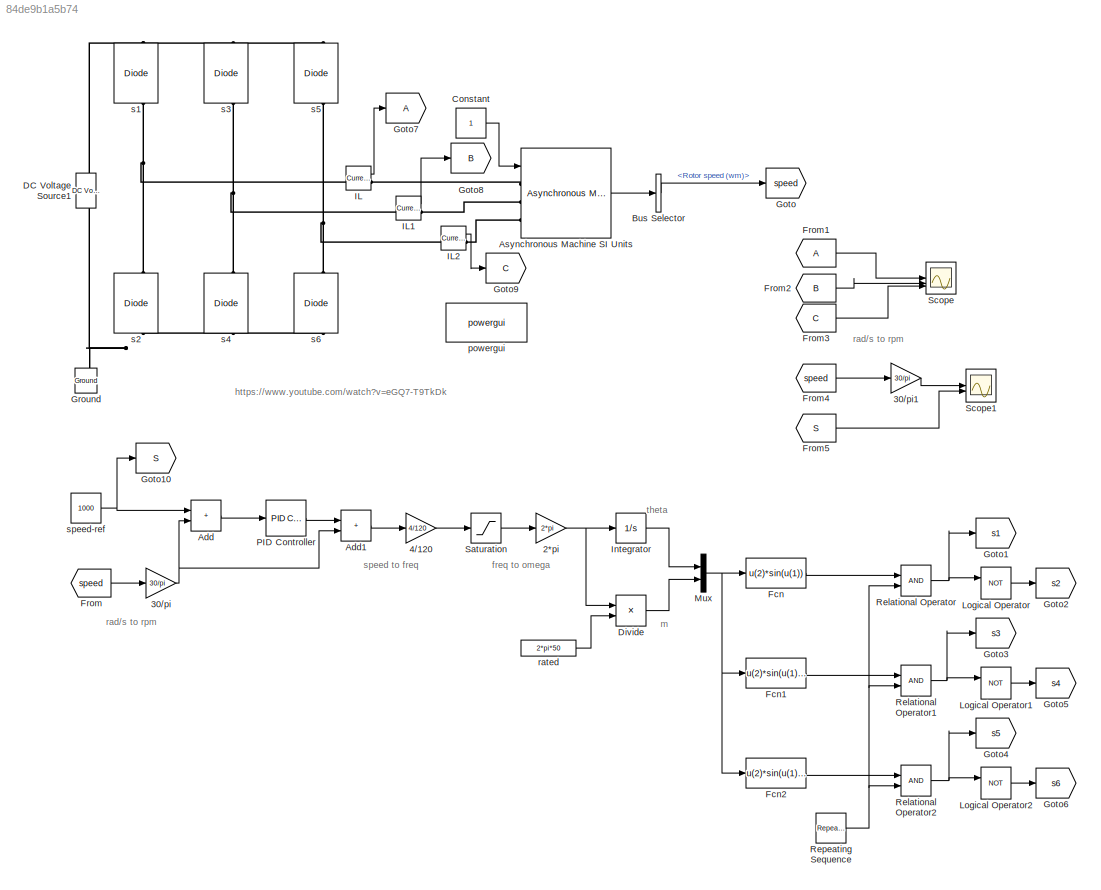
MODEL slx_84de9b1a5b74
KIND model
CONFIG AbsTol = auto
CONFIG EnableMultiTasking = off
CONFIG FixedStep = 1e-5
CONFIG MaxStep = auto
CONFIG MinStep = auto
CONFIG RelTol = 1e-3
CONFIG SampleTimeConstraint = Unconstrained
CONFIG SolverName = ode3
CONFIG StartTime = 0.0
CONFIG StopTime = 10.0
BLOCK [Gain] 2*pi
  Gain = 2*pi
BLOCK [Gain] 30//pi
  Gain = 30/pi
BLOCK [Gain] 30//pi1
  Gain = 30/pi
BLOCK [Gain] 4//120
  Gain = 4/120
BLOCK [Sum] Add
  IconShape = rectangular
BLOCK [Sum] Add1
  IconShape = rectangular
BLOCK [Reference] Asynchronous Machine SI Units  REF=spsAsynchronousMachineSIUnitsLib/Asynchronous Machine
SI Units
  LibrarySourceBlock = sps_lib/Electrical Machines/Asynchronous Machine\nSI Units
  SourceBlock = spsAsynchronousMachineSIUnitsLib/Asynchronous Machine\nSI Units
  SourceType = Asynchronous Machine
BLOCK [BusSelector] Bus Selector
  OutputSignals = Mechanical.Rotor speed (wm),Mechanical.Electromagnetic torque Te (N*m),Mechanical.Rotor angle thetam (rad)
BLOCK [Constant] Constant
BLOCK [Reference] DC Voltage Source1  REF=spsDCVoltageSourceLib/DC Voltage Source
  LibrarySourceBlock = sps_lib/Sources/DC Voltage Source
  SourceBlock = spsDCVoltageSourceLib/DC Voltage Source
  SourceType = DC Voltage Source
BLOCK [Product] Divide
  Inputs = */
BLOCK [Fcn] Fcn
  Expr = u(2)*sin(u(1))
BLOCK [Fcn] Fcn1
  Expr = u(2)*sin(u(1)-(2*pi/3))
BLOCK [Fcn] Fcn2
  Expr = u(2)*sin(u(1)+(2*pi/3))
BLOCK [From] From
  GotoTag = speed
BLOCK [From] From1
BLOCK [From] From2
  GotoTag = B
BLOCK [From] From3
  GotoTag = C
BLOCK [From] From4
  GotoTag = speed
BLOCK [From] From5
  GotoTag = S
BLOCK [Goto] Goto
  GotoTag = speed
BLOCK [Goto] Goto1
  GotoTag = s1
BLOCK [Goto] Goto10
  GotoTag = S
BLOCK [Goto] Goto2
  GotoTag = s2
BLOCK [Goto] Goto3
  GotoTag = s3
BLOCK [Goto] Goto4
  GotoTag = s5
BLOCK [Goto] Goto5
  GotoTag = s4
BLOCK [Goto] Goto6
  GotoTag = s6
BLOCK [Goto] Goto7
BLOCK [Goto] Goto8
  GotoTag = B
BLOCK [Goto] Goto9
  GotoTag = C
BLOCK [Reference] Ground  REF=spsGroundLib/Ground
  LibrarySourceBlock = sps_lib/Utilities/Ground
  NameLocation = right
  SourceBlock = spsGroundLib/Ground
  SourceType = Ground
BLOCK [Reference] IL  REF=spsCurrentMeasurementLib/Current Measurement
  LibrarySourceBlock = sps_lib/Sensors and Measurements/Current Measurement
  SourceBlock = spsCurrentMeasurementLib/Current Measurement
  SourceType = Current Measurement
  UserDataPersistent = on
BLOCK [Reference] IL1  REF=spsCurrentMeasurementLib/Current Measurement
  LibrarySourceBlock = sps_lib/Sensors and Measurements/Current Measurement
  SourceBlock = spsCurrentMeasurementLib/Current Measurement
  SourceType = Current Measurement
  UserDataPersistent = on
BLOCK [Reference] IL2  REF=spsCurrentMeasurementLib/Current Measurement
  LibrarySourceBlock = sps_lib/Sensors and Measurements/Current Measurement
  SourceBlock = spsCurrentMeasurementLib/Current Measurement
  SourceType = Current Measurement
  UserDataPersistent = on
BLOCK [Integrator] Integrator
BLOCK [Logic] Logical Operator
  AllPortsSameDT = off
  Operator = NOT
  OutDataTypeStr = boolean
BLOCK [Logic] Logical Operator1
  AllPortsSameDT = off
  Operator = NOT
  OutDataTypeStr = boolean
BLOCK [Logic] Logical Operator2
  AllPortsSameDT = off
  Operator = NOT
  OutDataTypeStr = boolean
BLOCK [Mux] Mux
  DisplayOption = bar
  Inputs = 2
BLOCK [Reference] PID Controller  REF=slpidlib/PID Controller
  LibrarySourceBlock = simulink/Continuous/PID Controller
  SourceBlock = slpidlib/PID Controller
  SourceType = PID 1dof
BLOCK [RelationalOperator] Relational Operator
  InputSameDT = off
  OutDataTypeStr = boolean
  RndMeth = Simplest
BLOCK [RelationalOperator] Relational Operator1
  InputSameDT = off
  OutDataTypeStr = boolean
  RndMeth = Simplest
BLOCK [RelationalOperator] Relational Operator2
  InputSameDT = off
  OutDataTypeStr = boolean
  RndMeth = Simplest
BLOCK [Reference] Repeating Sequence  REF=simulink/Sources/Repeating
Sequence
  SourceBlock = simulink/Sources/Repeating\nSequence
  SourceType = Repeating table
BLOCK [Saturate] Saturation
  LowerLimit = 0
  UpperLimit = 50
BLOCK [Scope] Scope
  Floating = off
  NumInputPorts = 3
  ScopeSpecificationString = Simulink.scopes.TimeScopeBlockCfg('CurrentConfiguration', extmgr.ConfigurationSet(extmgr.Configuration('Core','General UI',true),extmgr.Configuration('Core','Source UI',true),extmgr.Configuration('Sources','WiredSimulink',true),extmgr.Configuration('Visuals','Time Domain',true,'SerializedDisplays',{struct('MinYLimReal','-10','MaxYLimReal','10','YLabelReal','','MinYLimMag','0','MaxYLimMag','10','Le...<+1278ch>
BLOCK [Scope] Scope1
  Floating = off
  NumInputPorts = 2
  ScopeSpecificationString = Simulink.scopes.TimeScopeBlockCfg('CurrentConfiguration', extmgr.ConfigurationSet(extmgr.Configuration('Core','General UI',true),extmgr.Configuration('Core','Source UI',true),extmgr.Configuration('Sources','WiredSimulink',true,'DataLoggingVariableName','ScopeData1'),extmgr.Configuration('Visuals','Time Domain',true,'SerializedDisplays',{struct('MinYLimReal','-10','MaxYLimReal','10','YLabelReal',''...<+1317ch>
BLOCK [Reference] powergui  REF=sps_lib/powergui
  LibrarySourceBlock = sps_lib/powergui
  Priority = 1
  SourceBlock = sps_lib/powergui
  SourceType = PSB option menu block
BLOCK [Constant] rated
  Value = 2*pi*50
BLOCK [Reference] s1  REF=spsIGBTDiodeLib/IGBT//Diode
  LibrarySourceBlock = sps_lib/Power Electronics/IGBT//Diode
  NameLocation = left
  SourceBlock = spsIGBTDiodeLib/IGBT//Diode
  SourceType = IGBT/Diode
BLOCK [Reference] s2  REF=spsIGBTDiodeLib/IGBT//Diode
  LibrarySourceBlock = sps_lib/Power Electronics/IGBT//Diode
  NameLocation = left
  SourceBlock = spsIGBTDiodeLib/IGBT//Diode
  SourceType = IGBT/Diode
BLOCK [Reference] s3  REF=spsIGBTDiodeLib/IGBT//Diode
  LibrarySourceBlock = sps_lib/Power Electronics/IGBT//Diode
  NameLocation = left
  SourceBlock = spsIGBTDiodeLib/IGBT//Diode
  SourceType = IGBT/Diode
BLOCK [Reference] s4  REF=spsIGBTDiodeLib/IGBT//Diode
  LibrarySourceBlock = sps_lib/Power Electronics/IGBT//Diode
  NameLocation = left
  SourceBlock = spsIGBTDiodeLib/IGBT//Diode
  SourceType = IGBT/Diode
BLOCK [Reference] s5  REF=spsIGBTDiodeLib/IGBT//Diode
  LibrarySourceBlock = sps_lib/Power Electronics/IGBT//Diode
  NameLocation = left
  SourceBlock = spsIGBTDiodeLib/IGBT//Diode
  SourceType = IGBT/Diode
BLOCK [Reference] s6  REF=spsIGBTDiodeLib/IGBT//Diode
  LibrarySourceBlock = sps_lib/Power Electronics/IGBT//Diode
  NameLocation = left
  SourceBlock = spsIGBTDiodeLib/IGBT//Diode
  SourceType = IGBT/Diode
BLOCK [Constant] speed-ref
  Value = 1000
ANNOTATION (root): freq to omega
ANNOTATION (root): https://www.youtube.com/watch?v=eGQ7-T9TkDk
ANNOTATION (root): m
ANNOTATION (root): rad/s to rpm
ANNOTATION (root): speed to freq
ANNOTATION (root): theta
NET 2*pi:1 -> Divide:1, Integrator:1
LINE 30//pi1:1 -> Scope1:1
NET 30//pi:1 -> Add1:2, Add:2
LINE 4//120:1 -> Saturation:1
LINE Add1:1 -> 4//120:1
LINE Add:1 -> PID Controller:1
LINE Asynchronous Machine SI Units:1 -> Bus Selector:1
LINE Bus Selector:1 -> Goto:1
LINE Constant:1 -> Asynchronous Machine SI Units:1
LINE Divide:1 -> Mux:2
LINE Fcn1:1 -> Relational Operator1:1
LINE Fcn2:1 -> Relational Operator2:1
LINE Fcn:1 -> Relational Operator:1
LINE From1:1 -> Scope:1
LINE From2:1 -> Scope:2
LINE From3:1 -> Scope:3
LINE From4:1 -> 30//pi1:1
LINE From5:1 -> Scope1:2
LINE From:1 -> 30//pi:1
LINE IL1:1 -> Goto8:1
LINE IL2:1 -> Goto9:1
LINE IL:1 -> Goto7:1
LINE Integrator:1 -> Mux:1
LINE Logical Operator1:1 -> Goto5:1
LINE Logical Operator2:1 -> Goto6:1
LINE Logical Operator:1 -> Goto2:1
NET Mux:1 -> Fcn1:1, Fcn2:1, Fcn:1
LINE PID Controller:1 -> Add1:1
NET Relational Operator1:1 -> Goto3:1, Logical Operator1:1
NET Relational Operator2:1 -> Goto4:1, Logical Operator2:1
NET Relational Operator:1 -> Goto1:1, Logical Operator:1
NET Repeating Sequence:1 -> Relational Operator1:2, Relational Operator2:2, Relational Operator:2
LINE Saturation:1 -> 2*pi:1
LINE rated:1 -> Divide:2
NET speed-ref:1 -> Add:1, Goto10:1
PLINE Asynchronous Machine SI Units:LConn1 -- IL:RConn1
PLINE Asynchronous Machine SI Units:LConn2 -- IL1:RConn1
PLINE Asynchronous Machine SI Units:LConn3 -- IL2:RConn1
PNET net1: DC Voltage Source1:LConn1 -- Ground:LConn1 -- s2:RConn1 -- s4:RConn1 -- s6:RConn1
PNET net2: DC Voltage Source1:RConn1 -- s1:LConn1 -- s3:LConn1 -- s5:LConn1
PNET net3: IL1:LConn1 -- s3:RConn1 -- s4:LConn1
PNET net4: IL2:LConn1 -- s5:RConn1 -- s6:LConn1
PNET net5: IL:LConn1 -- s1:RConn1 -- s2:LConn1
note: NET lines group one-source signal fan-out (src -> all destinations, sorted); 1:1 wires keep LINE; PNET lines group multi-terminal physical nets as a canonical sorted terminal list (undirected conserving connections); 2-terminal nets keep the pairwise PLINE form
